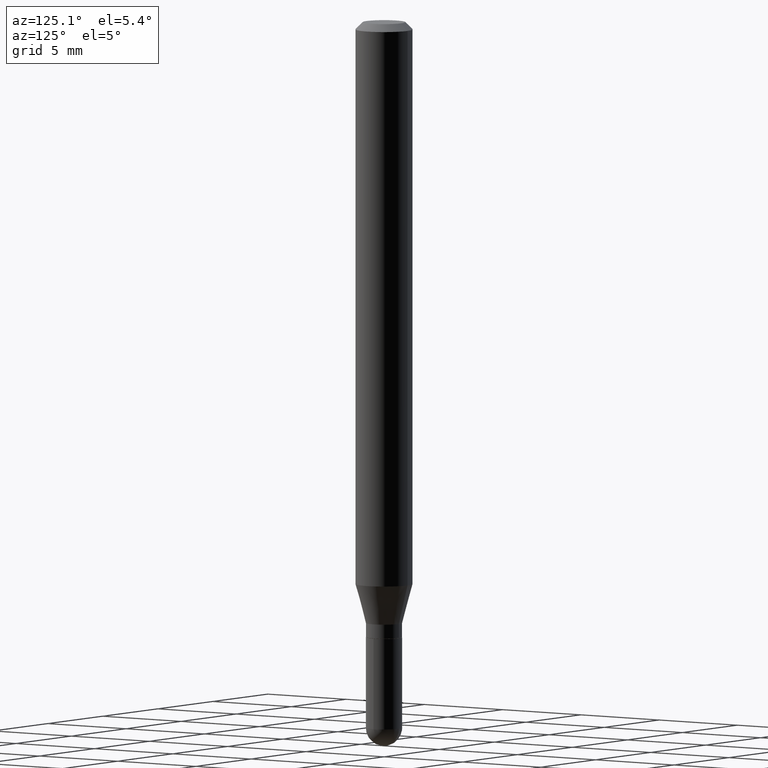
[diagram: clean part render]
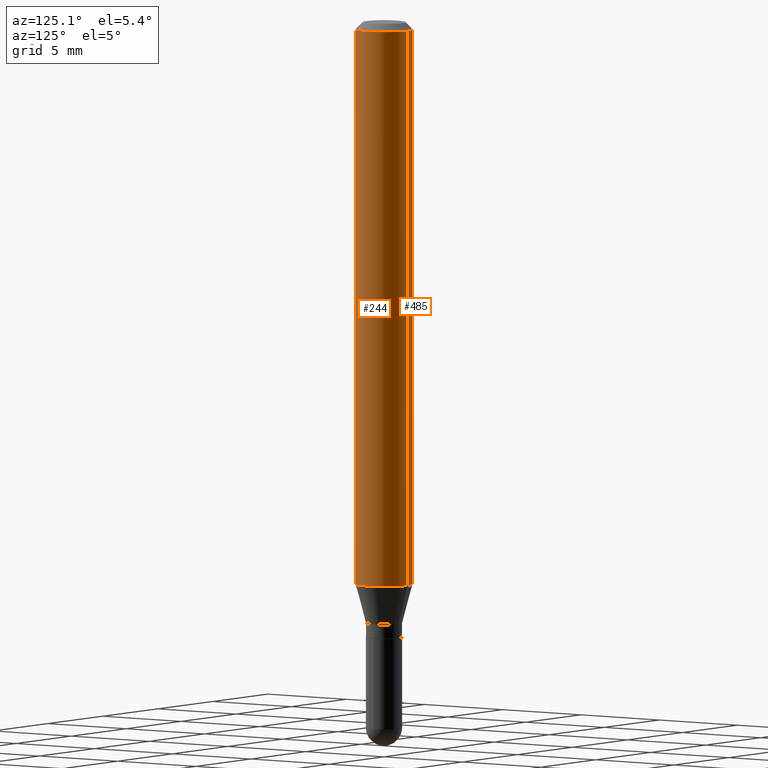
[diagram: same view with one multi-face feature highlighted, each face labeled with its STEP entity id]
A machine part, auxiliary view. The highlighted faces form ONE feature: a constant-radius fillet chain: 2 tangent blend faces with common blend radius 1.4999 mm. The faces share edges in the B-rep.
Their STEP definitions:
[1] entity #485 (Cylinder):
#2 = DIRECTION ( 'NONE',  ( -2.445484334717468907E-29, 3.491459101101016620E-15, 1.000000000000000000 ) ) ;
#10 = DIRECTION ( 'NONE',  ( -6.982962677686265922E-15, -1.000000000000000000, 3.505890868245046092E-15 ) ) ;
#12 = CARTESIAN_POINT ( 'NONE',  ( 2.839943647979619308E-29, -4.054635294769952393E-15, -1.161301100016133736 ) ) ;
#17 = EDGE_CURVE ( 'NONE', #462, #472, #261, .T. ) ;
#20 = EDGE_CURVE ( 'NONE', #91, #472, #354, .T. ) ;
#30 = ORIENTED_EDGE ( 'NONE', *, *, #505, .T. ) ;
#32 = VECTOR ( 'NONE', #2, 39.37007874015748143 ) ;
#37 = ORIENTED_EDGE ( 'NONE', *, *, #20, .T. ) ;
#46 = EDGE_CURVE ( 'NONE', #339, #462, #378, .T. ) ;
#47 = AXIS2_PLACEMENT_3D ( 'NONE', #327, #141, #331 ) ;
#62 = FACE_OUTER_BOUND ( 'NONE', #246, .T. ) ;
#91 = VERTEX_POINT ( 'NONE', #450 ) ;
#95 = DIRECTION ( 'NONE',  ( -2.445484334717468907E-29, 3.491459101101016620E-15, 1.000000000000000000 ) ) ;
#102 = AXIS2_PLACEMENT_3D ( 'NONE', #481, #95, #10 ) ;
#141 = DIRECTION ( 'NONE',  ( -2.445484334717468907E-29, 3.491459101101016620E-15, 1.000000000000000000 ) ) ;
#144 = DIRECTION ( 'NONE',  ( -6.982962677686265922E-15, -1.000000000000000000, 4.626330217890369336E-15 ) ) ;
#147 = CARTESIAN_POINT ( 'NONE',  ( 4.195754854663390985E-16, 0.05904999999999999832, -2.061706599200150360E-16 ) ) ;
#191 = CIRCLE ( 'NONE', #413, 0.05904999999999999832 ) ;
#246 = EDGE_LOOP ( 'NONE', ( #352, #30, #37, #283 ) ) ;
#248 = CARTESIAN_POINT ( 'NONE',  ( 4.195754854663672017E-16, 0.05904999999999591132, -1.161301100016133736 ) ) ;
#254 = CARTESIAN_POINT ( 'NONE',  ( 4.195754854663675961E-16, 0.05904999999999994281, -0.01500000000000029955 ) ) ;
#261 = CIRCLE ( 'NONE', #102, 0.05904999999999999832 ) ;
#283 = ORIENTED_EDGE ( 'NONE', *, *, #17, .F. ) ;
#289 = VECTOR ( 'NONE', #375, 39.37007874015748143 ) ;
#293 = DIRECTION ( 'NONE',  ( -2.445484334717468907E-29, 3.491459101101016620E-15, 1.000000000000000000 ) ) ;
#327 = CARTESIAN_POINT ( 'NONE',  ( 0.000000000000000000, 0.000000000000000000, 0.000000000000000000 ) ) ;
#331 = DIRECTION ( 'NONE',  ( -6.982962677686265922E-15, -1.000000000000000000, 3.491459101101016620E-15 ) ) ;
#339 = VERTEX_POINT ( 'NONE', #248 ) ;
#352 = ORIENTED_EDGE ( 'NONE', *, *, #46, .F. ) ;
#354 = LINE ( 'NONE', #356, #32 ) ;
#356 = CARTESIAN_POINT ( 'NONE',  ( -4.123439461173739834E-16, -0.05904999999999999832, 2.061706599200150360E-16 ) ) ;
#375 = DIRECTION ( 'NONE',  ( -2.445484334717468907E-29, 3.491459101101016620E-15, 1.000000000000000000 ) ) ;
#378 = LINE ( 'NONE', #147, #289 ) ;
#413 = AXIS2_PLACEMENT_3D ( 'NONE', #12, #293, #144 ) ;
#449 = CARTESIAN_POINT ( 'NONE',  ( -4.123439461173736383E-16, -0.05905000000000005383, -0.01499999999999988495 ) ) ;
#450 = CARTESIAN_POINT ( 'NONE',  ( -4.123439461173457816E-16, -0.05905000000000408533, -1.161301100016133514 ) ) ;
#462 = VERTEX_POINT ( 'NONE', #254 ) ;
#472 = VERTEX_POINT ( 'NONE', #449 ) ;
#481 = CARTESIAN_POINT ( 'NONE',  ( 3.668226502076225554E-31, -5.237188651651557249E-17, -0.01500000000000009139 ) ) ;
#485 = ADVANCED_FACE ( 'NONE', ( #62 ), #490, .T. ) ;
#490 = CYLINDRICAL_SURFACE ( 'NONE', #47, 0.05904999999999999832 ) ;
#505 = EDGE_CURVE ( 'NONE', #339, #91, #191, .T. ) ;
[2] entity #244 (Cylinder):
#2 = DIRECTION ( 'NONE',  ( -2.445484334717468907E-29, 3.491459101101016620E-15, 1.000000000000000000 ) ) ;
#18 = CARTESIAN_POINT ( 'NONE',  ( 3.668226502076225554E-31, -5.237188651651557249E-17, -0.01500000000000009139 ) ) ;
#20 = EDGE_CURVE ( 'NONE', #91, #472, #354, .T. ) ;
#32 = VECTOR ( 'NONE', #2, 39.37007874015748143 ) ;
#46 = EDGE_CURVE ( 'NONE', #339, #462, #378, .T. ) ;
#59 = CIRCLE ( 'NONE', #448, 0.05904999999999999832 ) ;
#76 = ORIENTED_EDGE ( 'NONE', *, *, #151, .F. ) ;
#82 = CARTESIAN_POINT ( 'NONE',  ( 0.000000000000000000, 0.000000000000000000, 0.000000000000000000 ) ) ;
#91 = VERTEX_POINT ( 'NONE', #450 ) ;
#121 = CYLINDRICAL_SURFACE ( 'NONE', #405, 0.05904999999999999832 ) ;
#147 = CARTESIAN_POINT ( 'NONE',  ( 4.195754854663390985E-16, 0.05904999999999999832, -2.061706599200150360E-16 ) ) ;
#151 = EDGE_CURVE ( 'NONE', #472, #462, #433, .T. ) ;
#167 = ORIENTED_EDGE ( 'NONE', *, *, #46, .T. ) ;
#197 = ORIENTED_EDGE ( 'NONE', *, *, #432, .T. ) ;
#231 = AXIS2_PLACEMENT_3D ( 'NONE', #18, #499, #454 ) ;
#237 = DIRECTION ( 'NONE',  ( -6.982962677686265922E-15, -1.000000000000000000, 3.491459101101016620E-15 ) ) ;
#244 = ADVANCED_FACE ( 'NONE', ( #313 ), #121, .T. ) ;
#248 = CARTESIAN_POINT ( 'NONE',  ( 4.195754854663672017E-16, 0.05904999999999591132, -1.161301100016133736 ) ) ;
#254 = CARTESIAN_POINT ( 'NONE',  ( 4.195754854663675961E-16, 0.05904999999999994281, -0.01500000000000029955 ) ) ;
#289 = VECTOR ( 'NONE', #375, 39.37007874015748143 ) ;
#306 = EDGE_LOOP ( 'NONE', ( #197, #167, #76, #312 ) ) ;
#312 = ORIENTED_EDGE ( 'NONE', *, *, #20, .F. ) ;
#313 = FACE_OUTER_BOUND ( 'NONE', #306, .T. ) ;
#334 = DIRECTION ( 'NONE',  ( -6.982962677686265922E-15, -1.000000000000000000, 4.626330217890369336E-15 ) ) ;
#339 = VERTEX_POINT ( 'NONE', #248 ) ;
#354 = LINE ( 'NONE', #356, #32 ) ;
#356 = CARTESIAN_POINT ( 'NONE',  ( -4.123439461173739834E-16, -0.05904999999999999832, 2.061706599200150360E-16 ) ) ;
#371 = DIRECTION ( 'NONE',  ( -2.445484334717468907E-29, 3.491459101101016620E-15, 1.000000000000000000 ) ) ;
#375 = DIRECTION ( 'NONE',  ( -2.445484334717468907E-29, 3.491459101101016620E-15, 1.000000000000000000 ) ) ;
#378 = LINE ( 'NONE', #147, #289 ) ;
#405 = AXIS2_PLACEMENT_3D ( 'NONE', #82, #435, #237 ) ;
#432 = EDGE_CURVE ( 'NONE', #91, #339, #59, .T. ) ;
#433 = CIRCLE ( 'NONE', #231, 0.05904999999999999832 ) ;
#435 = DIRECTION ( 'NONE',  ( -2.445484334717468907E-29, 3.491459101101016620E-15, 1.000000000000000000 ) ) ;
#445 = CARTESIAN_POINT ( 'NONE',  ( 2.839943647979619308E-29, -4.054635294769952393E-15, -1.161301100016133736 ) ) ;
#448 = AXIS2_PLACEMENT_3D ( 'NONE', #445, #371, #334 ) ;
#449 = CARTESIAN_POINT ( 'NONE',  ( -4.123439461173736383E-16, -0.05905000000000005383, -0.01499999999999988495 ) ) ;
#450 = CARTESIAN_POINT ( 'NONE',  ( -4.123439461173457816E-16, -0.05905000000000408533, -1.161301100016133514 ) ) ;
#454 = DIRECTION ( 'NONE',  ( -6.982962677686265922E-15, -1.000000000000000000, 3.505890868245046092E-15 ) ) ;
#462 = VERTEX_POINT ( 'NONE', #254 ) ;
#472 = VERTEX_POINT ( 'NONE', #449 ) ;
#499 = DIRECTION ( 'NONE',  ( -2.445484334717468907E-29, 3.491459101101016620E-15, 1.000000000000000000 ) ) ;